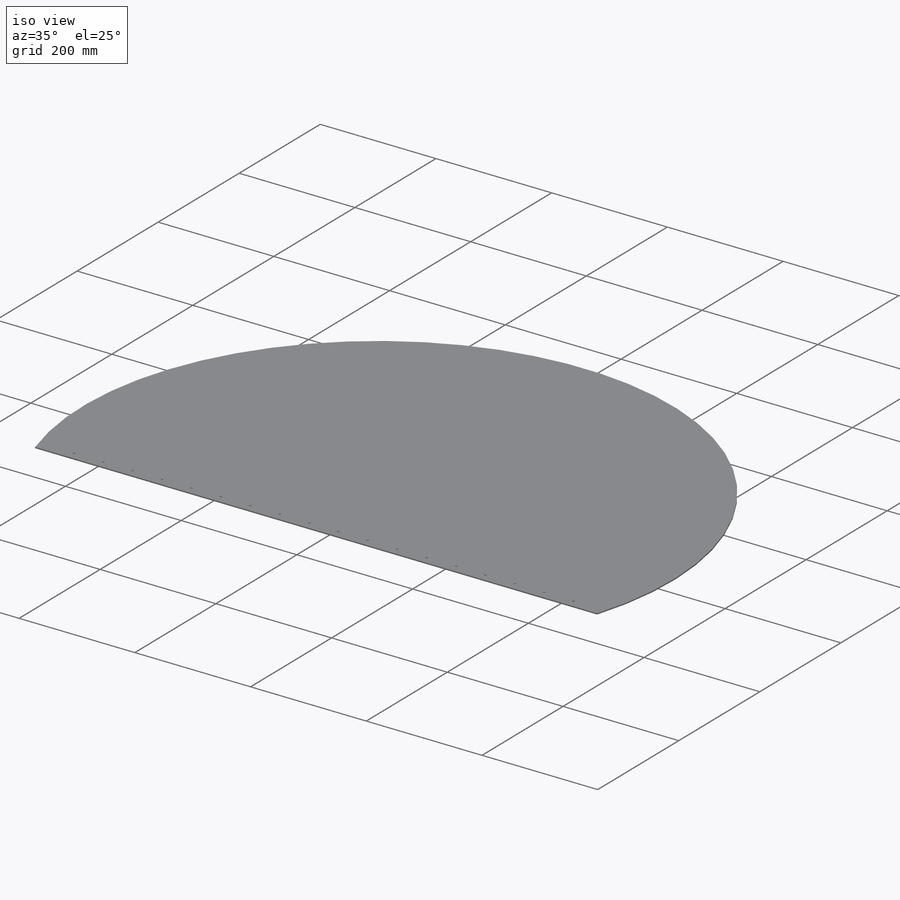
[diagram: iso view]
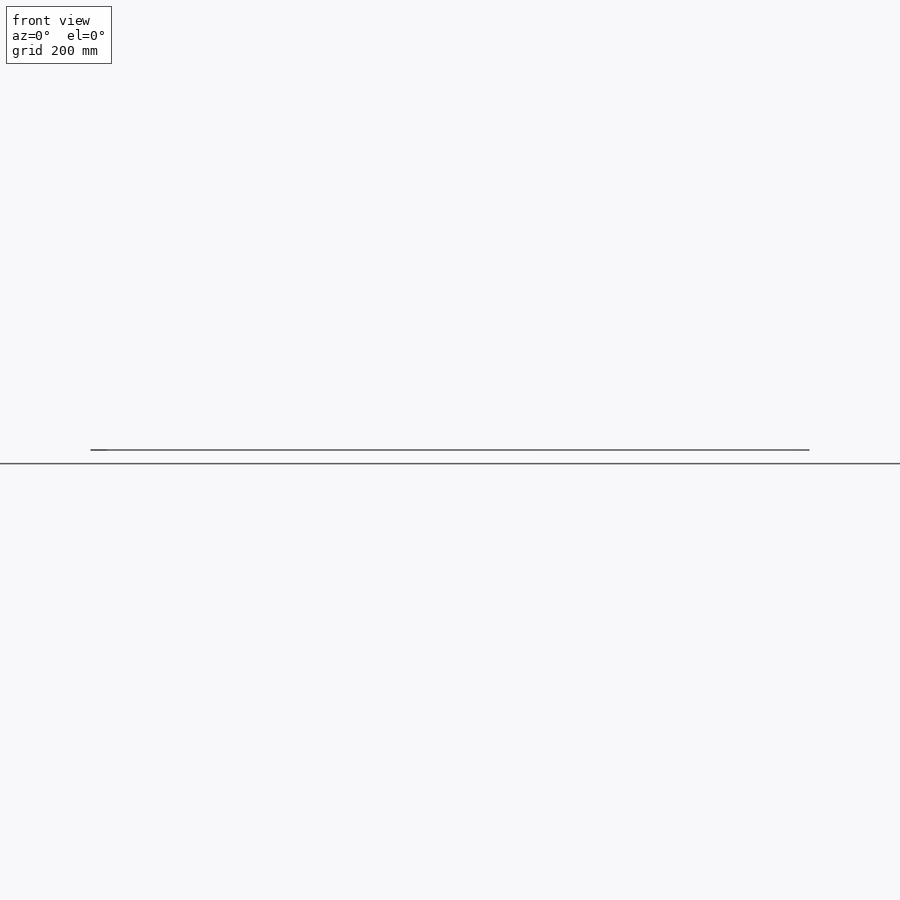
[diagram: front view]
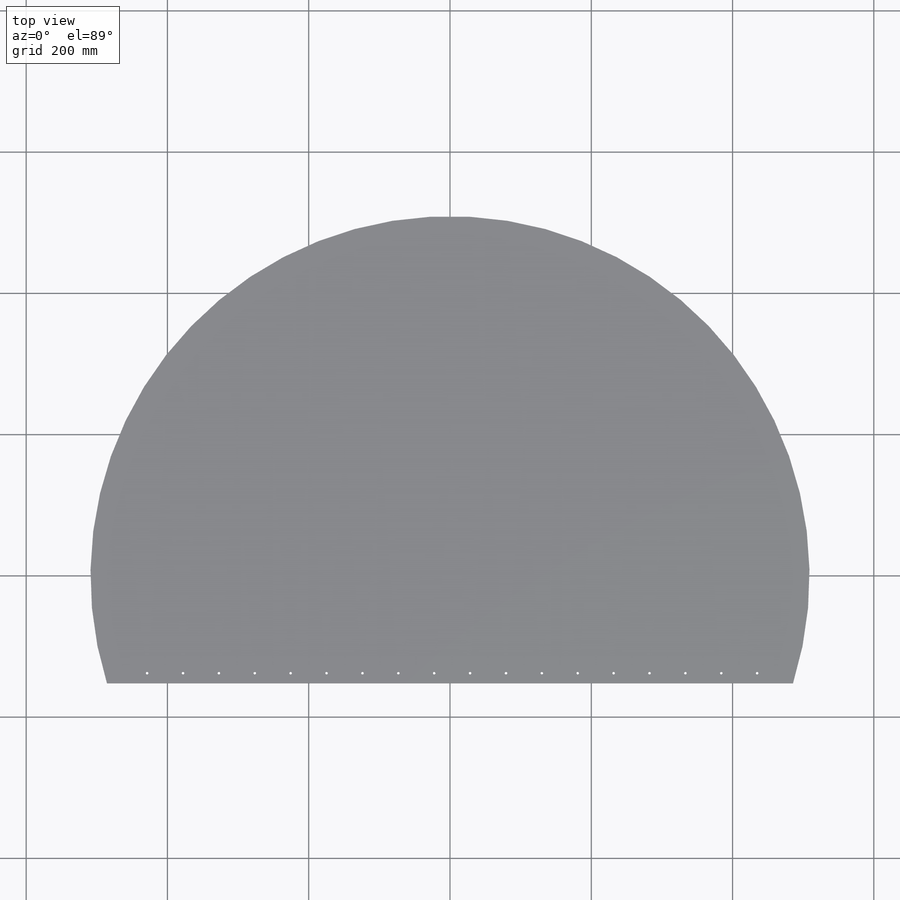
[diagram: top view]
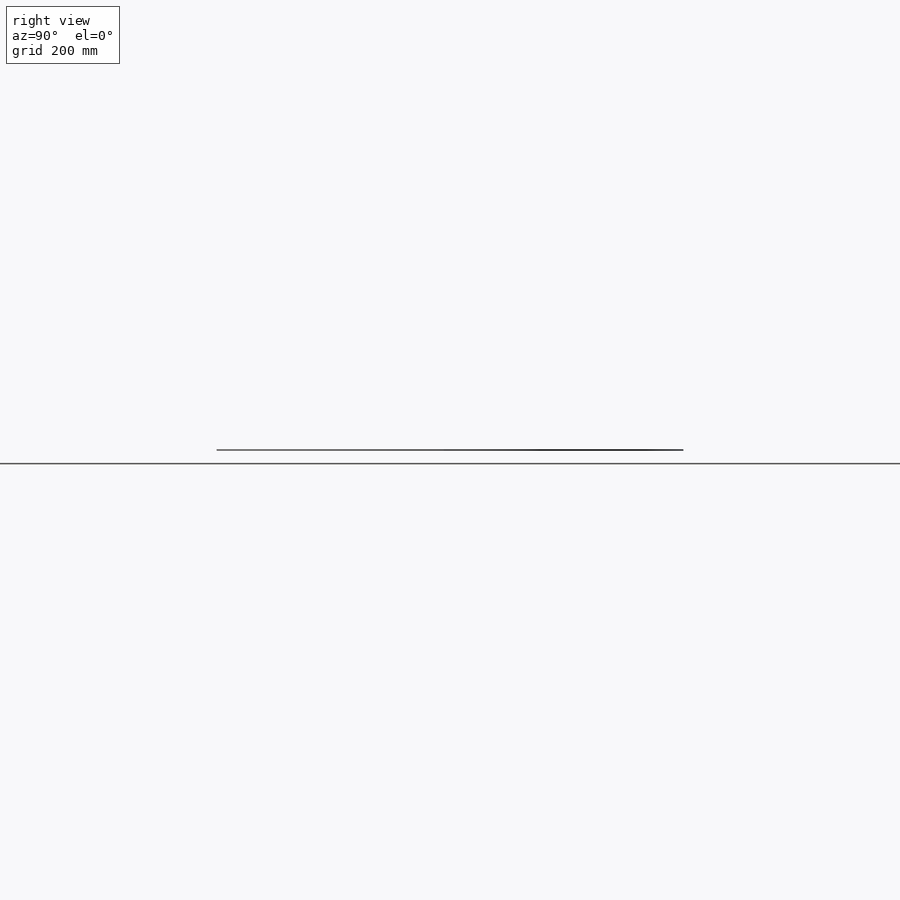
[diagram: right view]
SOLIDWORKS PART (.sldprt)
format: sldprt  version: not decoded by parser v0  size: 536,064 bytes
history: native  units: mm
features: sketch x2, material x1, extrude x1, cut_extrude x1, pattern_linear x1 (+16 scaffold rows collapsed)
feature tree (22):
  scaffold x16  (default folders/planes/origin — collapsed)
  material  "Wrought Stainless Steel"
  sketch  "Sketch1"  dims[D2=508.9906mm D1=152.4mm]
  extrude  "Boss-Extrude1"  Depth=1.98374mm
  sketch  "Sketch2"  dims[c1.D1=3.556mm c1.D2=3.556mm c1.D3=3.556mm c1.D4=3.556mm c1.D5=3.556mm c2.D1=3.556mm c2.D3=50.8mm c2.D4=50.8mm c3.D1=14.2875mm]
  cut_extrude  "Cut-Extrude1"  Depth=3.175mm
  pattern_linear  "LPattern1"  Count1=18 Count2=1 Spacing1=50.8mm Spacing2=2.54mm
decode coverage: 5 of 5 modeling features carry decoded parameters
note: suppression state not decoded; provenance and decode notes live in map.json
